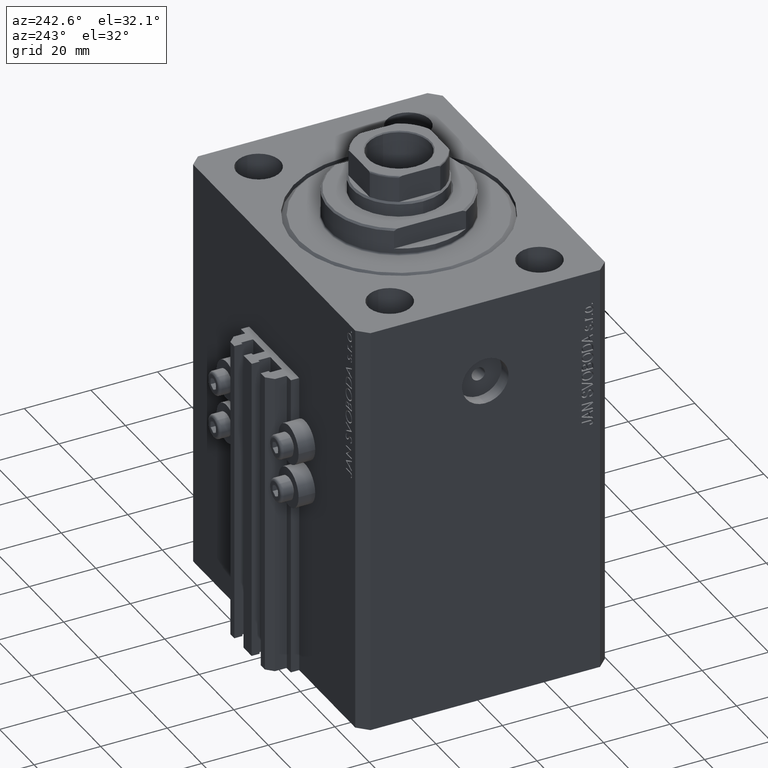
[diagram: clean part render]
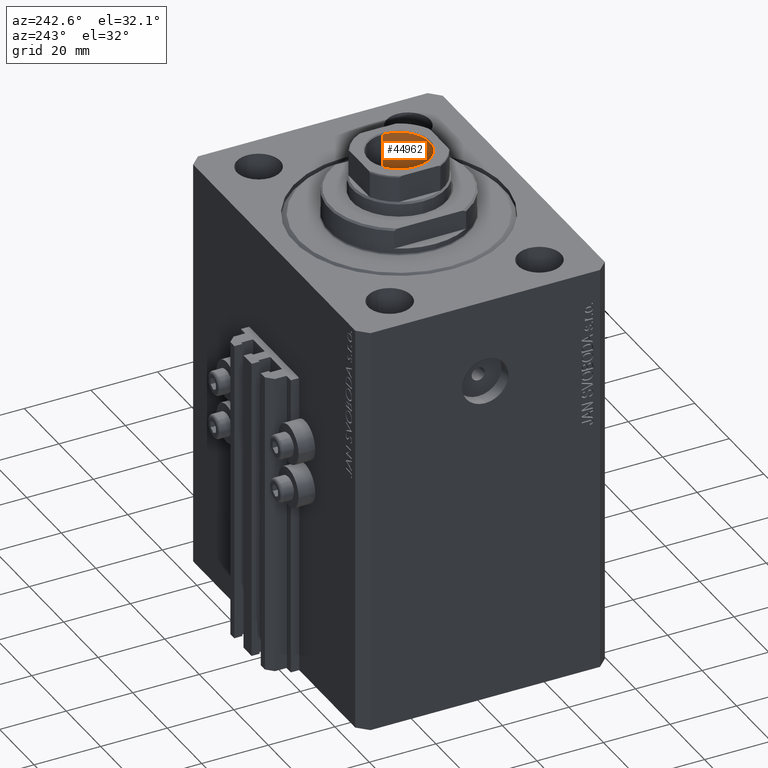
[diagram: same view with one face highlighted and labeled with its STEP entity id]
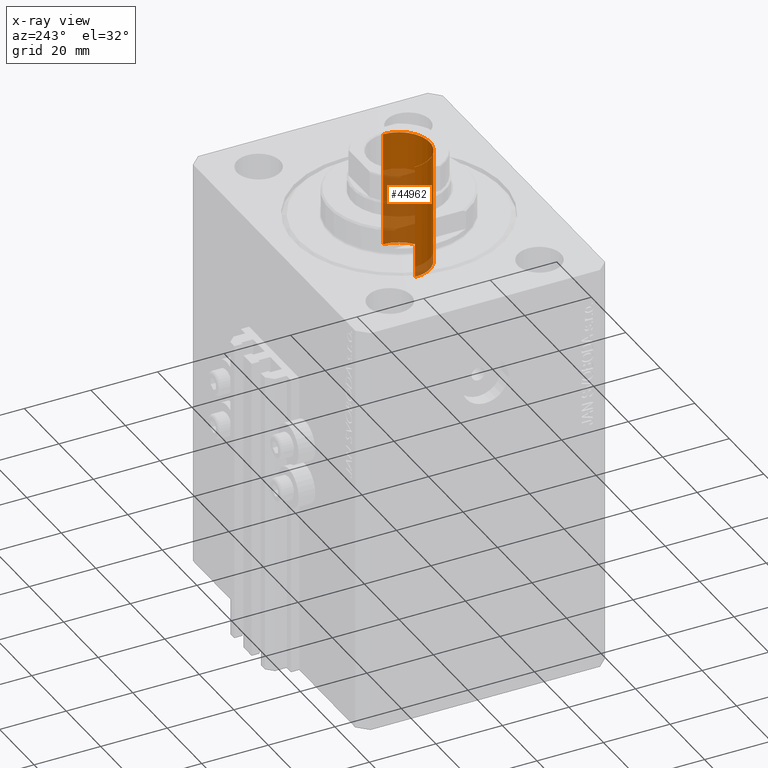
[diagram: x-ray of the same camera — body ghosted, the highlighted face saturated]
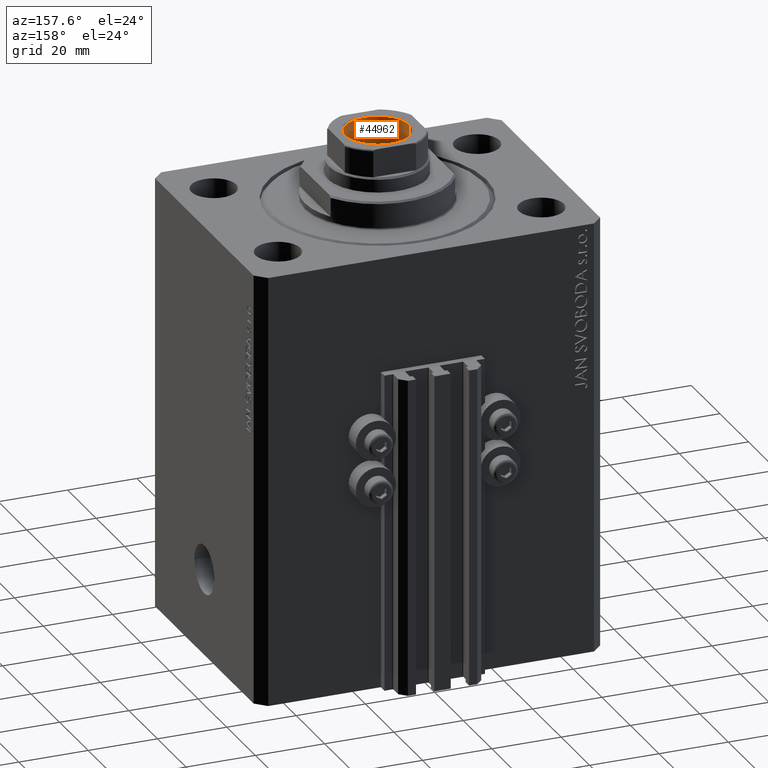
[diagram: same view with one face highlighted and labeled with its STEP entity id]
A machine part, auxiliary view. The second image highlights one B-rep face of the part: STEP entity #44962.
The next image is the same camera in x-ray: the body ghosted, the highlighted face saturated — about 43% of this face is hidden behind the body in this view.
A second angle (auxiliary view) of the same face is appended — the face is thin or edge-on in the first view.
In plain terms, the highlighted cylindrical surface (edge-blend (fillet) strip) has radius 9.25 mm, axis along (0, 0, 1).
Its self-contained STEP definition (entity closure, byte-faithful):
#1573 = DIRECTION ( 'NONE',  ( 1.000000000000000000, 0.000000000000000000, 0.000000000000000000 ) ) ;
#4233 = AXIS2_PLACEMENT_3D ( 'NONE', #9808, #6447, #46431 ) ;
#4920 = DIRECTION ( 'NONE',  ( -0.000000000000000000, -0.000000000000000000, 1.000000000000000000 ) ) ;
#6447 = DIRECTION ( 'NONE',  ( 0.000000000000000000, 0.000000000000000000, 1.000000000000000000 ) ) ;
#6580 = VECTOR ( 'NONE', #25795, 1000.000000000000000 ) ;
#9093 = CARTESIAN_POINT ( 'NONE',  ( -9.249999999999994671, 1.132798289211300909E-15, 98.09999999999999432 ) ) ;
#9808 = CARTESIAN_POINT ( 'NONE',  ( 0.000000000000000000, 0.000000000000000000, 132.8000000000000114 ) ) ;
#11204 = EDGE_LOOP ( 'NONE', ( #43542, #11735, #32271, #38970 ) ) ;
#11735 = ORIENTED_EDGE ( 'NONE', *, *, #34319, .T. ) ;
#11863 = DIRECTION ( 'NONE',  ( -0.000000000000000000, -0.000000000000000000, 1.000000000000000000 ) ) ;
#14853 = EDGE_CURVE ( 'NONE', #17365, #41537, #35978, .T. ) ;
#16126 = EDGE_CURVE ( 'NONE', #41537, #16991, #34113, .T. ) ;
#16991 = VERTEX_POINT ( 'NONE', #46027 ) ;
#17365 = VERTEX_POINT ( 'NONE', #9093 ) ;
#21517 = VECTOR ( 'NONE', #4920, 1000.000000000000000 ) ;
#21718 = CARTESIAN_POINT ( 'NONE',  ( -9.249999999999996447, 1.132798289211301304E-15, 133.0999999999999943 ) ) ;
#22851 = AXIS2_PLACEMENT_3D ( 'NONE', #23121, #11863, #1573 ) ;
#23121 = CARTESIAN_POINT ( 'NONE',  ( 0.000000000000000000, 0.000000000000000000, 133.0999999999999943 ) ) ;
#25795 = DIRECTION ( 'NONE',  ( -0.000000000000000000, -0.000000000000000000, 1.000000000000000000 ) ) ;
#30621 = CARTESIAN_POINT ( 'NONE',  ( 0.000000000000000000, 0.000000000000000000, 98.09999999999999432 ) ) ;
#32271 = ORIENTED_EDGE ( 'NONE', *, *, #32421, .T. ) ;
#32293 = VERTEX_POINT ( 'NONE', #36656 ) ;
#32421 = EDGE_CURVE ( 'NONE', #32293, #16991, #37106, .T. ) ;
#32538 = CARTESIAN_POINT ( 'NONE',  ( 9.249999999999994671, 0.000000000000000000, 98.09999999999999432 ) ) ;
#34113 = LINE ( 'NONE', #37943, #21517 ) ;
#34319 = EDGE_CURVE ( 'NONE', #17365, #32293, #36566, .T. ) ;
#35978 = CIRCLE ( 'NONE', #42106, 9.249999999999994671 ) ;
#36566 = LINE ( 'NONE', #21718, #6580 ) ;
#36656 = CARTESIAN_POINT ( 'NONE',  ( -9.249999999999996447, 1.132798289211301304E-15, 132.8000000000000114 ) ) ;
#37106 = CIRCLE ( 'NONE', #4233, 9.249999999999996447 ) ;
#37943 = CARTESIAN_POINT ( 'NONE',  ( 9.249999999999996447, 0.000000000000000000, 133.0999999999999943 ) ) ;
#38052 = DIRECTION ( 'NONE',  ( 1.000000000000000000, 0.000000000000000000, 0.000000000000000000 ) ) ;
#38970 = ORIENTED_EDGE ( 'NONE', *, *, #16126, .F. ) ;
#41537 = VERTEX_POINT ( 'NONE', #32538 ) ;
#41544 = CYLINDRICAL_SURFACE ( 'NONE', #22851, 9.249999999999996447 ) ;
#42106 = AXIS2_PLACEMENT_3D ( 'NONE', #30621, #45226, #38052 ) ;
#43542 = ORIENTED_EDGE ( 'NONE', *, *, #14853, .F. ) ;
#43701 = FACE_OUTER_BOUND ( 'NONE', #11204, .T. ) ;
#44962 = ADVANCED_FACE ( 'NONE', ( #43701 ), #41544, .F. ) ;
#45226 = DIRECTION ( 'NONE',  ( -0.000000000000000000, -0.000000000000000000, 1.000000000000000000 ) ) ;
#46027 = CARTESIAN_POINT ( 'NONE',  ( 9.249999999999996447, 0.000000000000000000, 132.8000000000000114 ) ) ;
#46431 = DIRECTION ( 'NONE',  ( 1.000000000000000000, 0.000000000000000000, 0.000000000000000000 ) ) ;